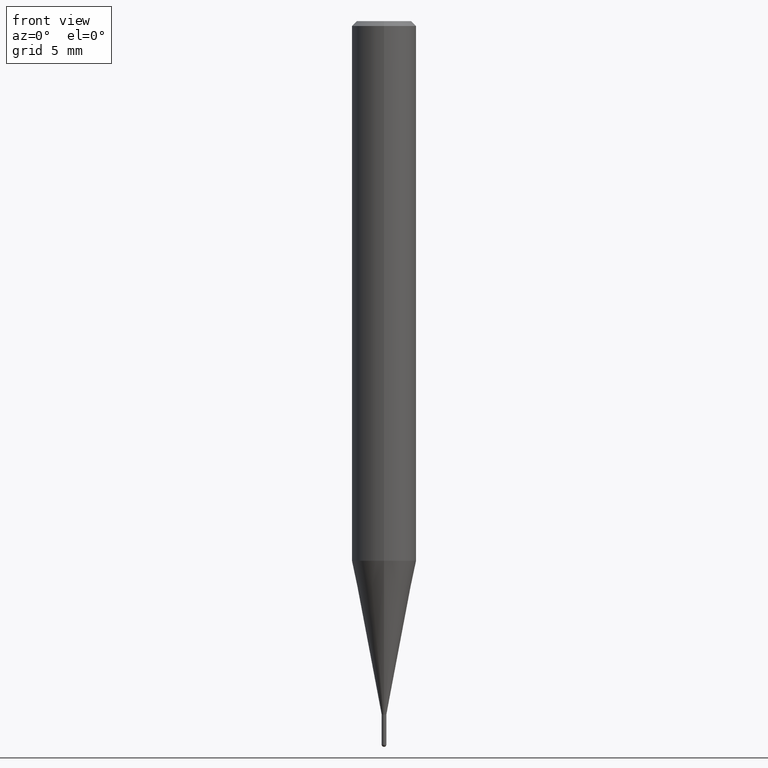
[diagram: clean part render]
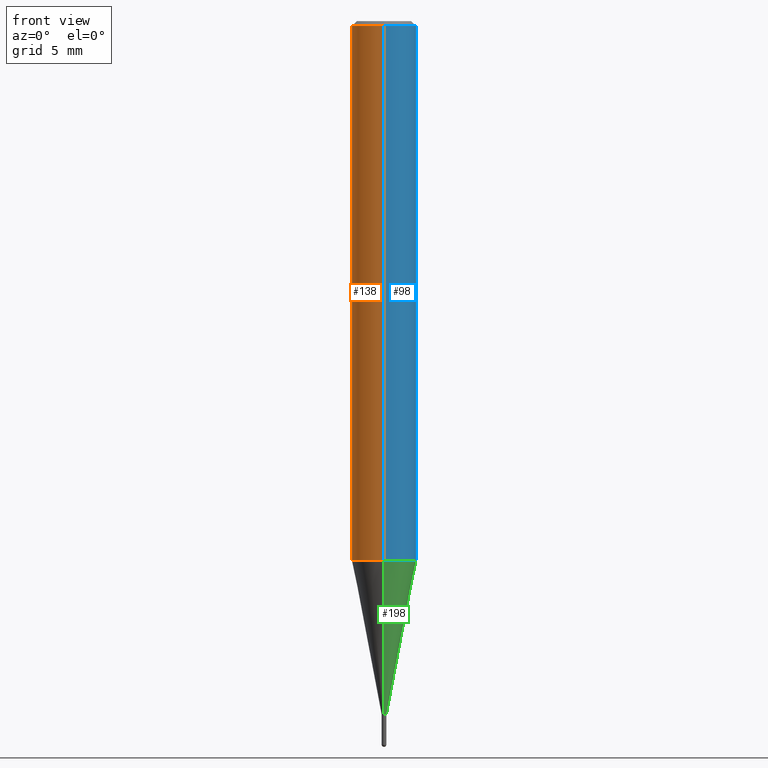
[diagram: same view with three faces highlighted in distinct colors, each labeled with its STEP entity id]
A machine part, front view with three faces highlighted in distinct colors.
Their STEP definitions:

[orange] entity #138 — the highlighted cylindrical surface (edge-blend (fillet) strip) has radius 2 mm, axis along (-0, -0, 1).
#104=VERTEX_POINT('',#247);
#106=EDGE_CURVE('',#104,#188,#249,.T.);
#118=EDGE_CURVE('',#176,#104,#264,.T.);
#124=EDGE_CURVE('',#188,#136,#270,.T.);
#136=VERTEX_POINT('',#283);
#138=ADVANCED_FACE('',(#285),#286,.T.);
#176=VERTEX_POINT('',#331);
#188=VERTEX_POINT('',#345);
#200=EDGE_CURVE('',#176,#136,#358,.T.);
#247=CARTESIAN_POINT('',(2.44921270764475E-016,-2.0,-0.299999999999997));
#249=CIRCLE('',#403,2.0);
#264=LINE('',#420,#421);
#270=LINE('',#428,#429);
#283=CARTESIAN_POINT('',(0.0,2.0,-33.457));
#285=FACE_OUTER_BOUND('',#445,.T.);
#286=CYLINDRICAL_SURFACE('',#446,2.0);
#331=CARTESIAN_POINT('',(2.44921270764475E-016,-2.0,-33.457));
#345=CARTESIAN_POINT('',(0.0,2.0,-0.299999999999997));
#358=CIRCLE('',#536,2.0);
#403=AXIS2_PLACEMENT_3D('',#584,#585,#586);
#420=CARTESIAN_POINT('',(2.44921270764475E-016,-2.0,-16.8785));
#421=VECTOR('',#612,1.0);
#428=CARTESIAN_POINT('',(-2.44921270764475E-016,2.0,-16.8785));
#429=VECTOR('',#613,1.0);
#445=EDGE_LOOP('',(#630,#631,#632,#633));
#446=AXIS2_PLACEMENT_3D('',#634,#635,#636);
#536=AXIS2_PLACEMENT_3D('',#726,#727,#728);
#584=CARTESIAN_POINT('',(0.0,0.0,-0.299999999999997));
#585=DIRECTION('',(0.0,0.0,-1.0));
#586=DIRECTION('',(0.0,1.0,0.0));
#612=DIRECTION('',(-0.0,-0.0,1.0));
#613=DIRECTION('',(0.0,0.0,-1.0));
#630=ORIENTED_EDGE('',*,*,#124,.T.);
#631=ORIENTED_EDGE('',*,*,#200,.F.);
#632=ORIENTED_EDGE('',*,*,#118,.T.);
#633=ORIENTED_EDGE('',*,*,#106,.T.);
#634=CARTESIAN_POINT('',(0.0,0.0,-16.8785));
#635=DIRECTION('',(-0.0,-0.0,1.0));
#636=DIRECTION('',(0.0,1.0,0.0));
#726=CARTESIAN_POINT('',(0.0,0.0,-33.457));
#727=DIRECTION('',(0.0,0.0,-1.0));
#728=DIRECTION('',(0.0,1.0,0.0));

[blue] entity #98 — the highlighted cylindrical surface (edge-blend (fillet) strip) has radius 2 mm, axis along (-0, -0, 1).
#96=EDGE_CURVE('',#188,#104,#238,.T.);
#98=ADVANCED_FACE('',(#240),#241,.T.);
#100=EDGE_CURVE('',#136,#176,#243,.T.);
#104=VERTEX_POINT('',#247);
#118=EDGE_CURVE('',#176,#104,#264,.T.);
#124=EDGE_CURVE('',#188,#136,#270,.T.);
#136=VERTEX_POINT('',#283);
#176=VERTEX_POINT('',#331);
#188=VERTEX_POINT('',#345);
#238=CIRCLE('',#389,2.0);
#240=FACE_OUTER_BOUND('',#391,.T.);
#241=CYLINDRICAL_SURFACE('',#392,2.0);
#243=CIRCLE('',#395,2.0);
#247=CARTESIAN_POINT('',(2.44921270764475E-016,-2.0,-0.299999999999997));
#264=LINE('',#420,#421);
#270=LINE('',#428,#429);
#283=CARTESIAN_POINT('',(0.0,2.0,-33.457));
#331=CARTESIAN_POINT('',(2.44921270764475E-016,-2.0,-33.457));
#345=CARTESIAN_POINT('',(0.0,2.0,-0.299999999999997));
#389=AXIS2_PLACEMENT_3D('',#567,#568,#569);
#391=EDGE_LOOP('',(#571,#572,#573,#574));
#392=AXIS2_PLACEMENT_3D('',#575,#576,#577);
#395=AXIS2_PLACEMENT_3D('',#578,#579,#580);
#420=CARTESIAN_POINT('',(2.44921270764475E-016,-2.0,-16.8785));
#421=VECTOR('',#612,1.0);
#428=CARTESIAN_POINT('',(-2.44921270764475E-016,2.0,-16.8785));
#429=VECTOR('',#613,1.0);
#567=CARTESIAN_POINT('',(0.0,0.0,-0.299999999999997));
#568=DIRECTION('',(0.0,0.0,-1.0));
#569=DIRECTION('',(0.0,1.0,0.0));
#571=ORIENTED_EDGE('',*,*,#124,.F.);
#572=ORIENTED_EDGE('',*,*,#96,.T.);
#573=ORIENTED_EDGE('',*,*,#118,.F.);
#574=ORIENTED_EDGE('',*,*,#100,.F.);
#575=CARTESIAN_POINT('',(0.0,0.0,-16.8785));
#576=DIRECTION('',(-0.0,-0.0,1.0));
#577=DIRECTION('',(0.0,1.0,0.0));
#578=CARTESIAN_POINT('',(0.0,0.0,-33.457));
#579=DIRECTION('',(0.0,0.0,-1.0));
#580=DIRECTION('',(0.0,1.0,0.0));
#612=DIRECTION('',(-0.0,-0.0,1.0));
#613=DIRECTION('',(0.0,0.0,-1.0));

[green] entity #198 — the highlighted conical surface has half-angle 11 deg.
#102=EDGE_CURVE('',#210,#162,#245,.T.);
#120=VERTEX_POINT('',#266);
#122=VERTEX_POINT('',#268);
#146=EDGE_CURVE('',#162,#120,#294,.T.);
#162=VERTEX_POINT('',#315);
#196=EDGE_CURVE('',#122,#120,#353,.T.);
#198=ADVANCED_FACE('',(#355),#356,.T.);
#208=EDGE_CURVE('',#122,#210,#366,.T.);
#210=VERTEX_POINT('',#368);
#245=CIRCLE('',#398,0.14495);
#266=CARTESIAN_POINT('',(2.44915147732706E-016,-1.99995,-33.457));
#268=CARTESIAN_POINT('',(0.0,1.99995,-33.457));
#294=LINE('',#457,#458);
#315=CARTESIAN_POINT('',(1.77506690986554E-017,-0.14495,-43.0));
#353=CIRCLE('',#530,1.99995);
#355=FACE_OUTER_BOUND('',#532,.T.);
#356=CONICAL_SURFACE('',#533,1.07245,0.19198911666217);
#366=LINE('',#548,#549);
#368=CARTESIAN_POINT('',(0.0,0.14495,-43.0));
#398=AXIS2_PLACEMENT_3D('',#581,#582,#583);
#457=CARTESIAN_POINT('',(1.31332908415681E-016,-1.07245,-38.2285));
#458=VECTOR('',#642,1.0);
#530=AXIS2_PLACEMENT_3D('',#715,#716,#717);
#532=EDGE_LOOP('',(#719,#720,#721,#722));
#533=AXIS2_PLACEMENT_3D('',#723,#724,#725);
#548=CARTESIAN_POINT('',(-1.31332908415681E-016,1.07245,-38.2285));
#549=VECTOR('',#733,1.0);
#581=CARTESIAN_POINT('',(0.0,0.0,-43.0));
#582=DIRECTION('',(0.0,0.0,-1.0));
#583=DIRECTION('',(0.0,1.0,0.0));
#642=DIRECTION('',(2.33669392942694E-017,-0.190811841056793,0.981626630299177));
#715=CARTESIAN_POINT('',(0.0,0.0,-33.457));
#716=DIRECTION('',(0.0,0.0,-1.0));
#717=DIRECTION('',(0.0,1.0,0.0));
#719=ORIENTED_EDGE('',*,*,#208,.F.);
#720=ORIENTED_EDGE('',*,*,#196,.T.);
#721=ORIENTED_EDGE('',*,*,#146,.F.);
#722=ORIENTED_EDGE('',*,*,#102,.F.);
#723=CARTESIAN_POINT('',(0.0,0.0,-38.2285));
#724=DIRECTION('',(-0.0,-0.0,1.0));
#725=DIRECTION('',(0.0,1.0,0.0));
#733=DIRECTION('',(2.33669392942694E-017,-0.190811841056793,-0.981626630299177));